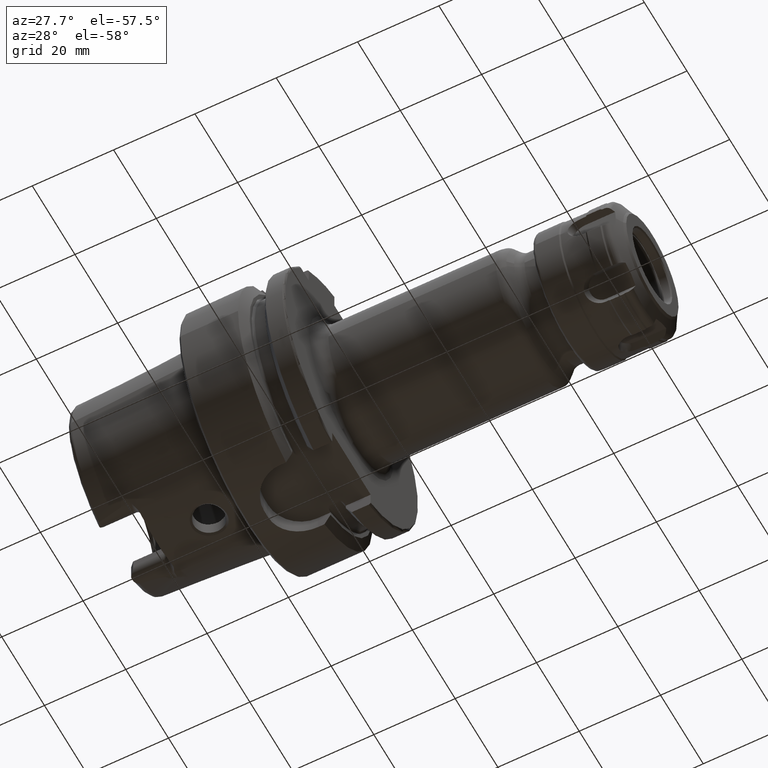
[diagram: clean part render]
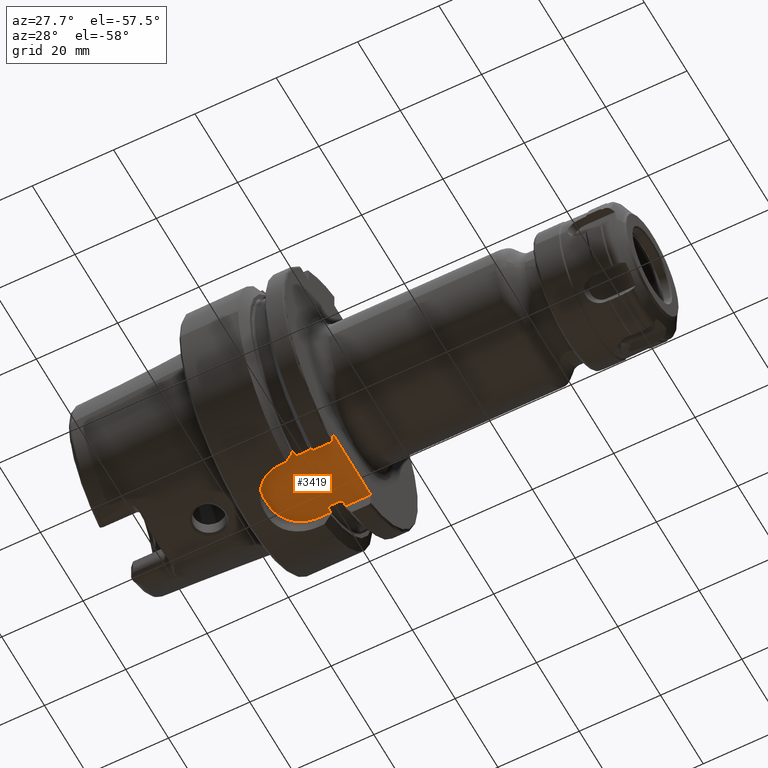
[diagram: same view with one face highlighted and labeled with its STEP entity id]
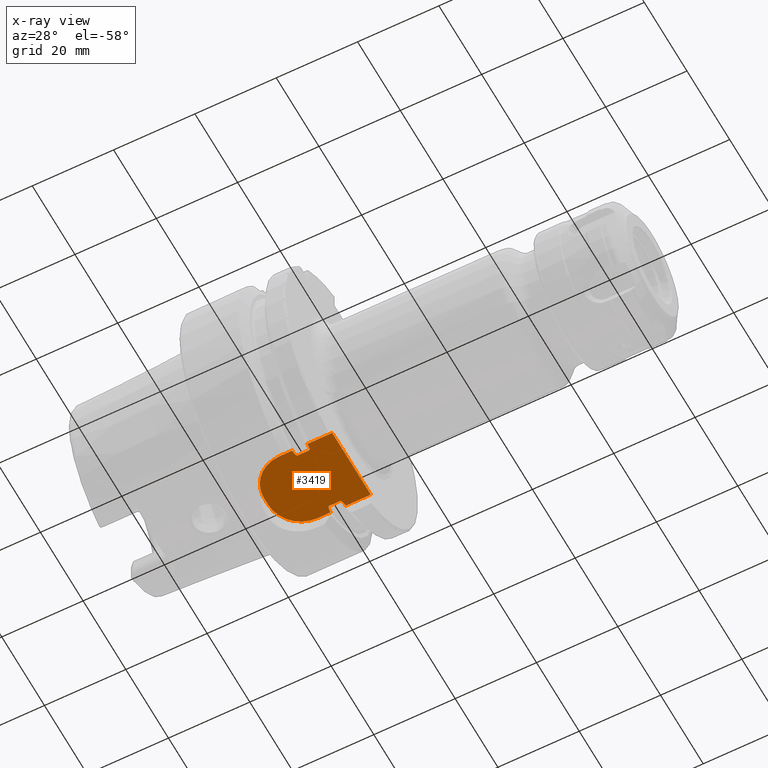
[diagram: x-ray of the same camera — body ghosted, the highlighted face saturated]
A machine part, auxiliary view. The second image highlights one B-rep face of the part: STEP entity #3419.
The next image is the same camera in x-ray: the body ghosted, the highlighted face saturated — about 0% of this face is hidden behind the body in this view.
In plain terms, the highlighted planar face has unit normal (0, 0, 1).
Its self-contained STEP definition (entity closure, byte-faithful):
#122=B_SPLINE_CURVE_WITH_KNOTS('',3,(#6136,#6137,#6138,#6139,#6140,#6141,
#6142,#6143,#6144,#6145),.UNSPECIFIED.,.F.,.F.,(4,2,2,2,4),(0.15835931245442,
0.289228035148658,0.316691561230897,0.323545183976989,0.328785692776271),
 .UNSPECIFIED.);
#123=B_SPLINE_CURVE_WITH_KNOTS('',3,(#6157,#6158,#6159,#6160,#6161,#6162,
#6163,#6164,#6165,#6166),.UNSPECIFIED.,.F.,.F.,(4,2,2,2,4),(0.328785692776271,
0.334026201575553,0.340879824321645,0.368343350403884,0.499212073098123),
 .UNSPECIFIED.);
#124=B_SPLINE_CURVE_WITH_KNOTS('',3,(#6169,#6170,#6171,#6172,#6173,#6174,
#6175,#6176,#6177,#6178),.UNSPECIFIED.,.F.,.F.,(4,2,2,2,4),(0.15835931245442,
0.289228035148658,0.316691561230897,0.323545183976988,0.32878569277627),
 .UNSPECIFIED.);
#125=B_SPLINE_CURVE_WITH_KNOTS('',3,(#6180,#6181,#6182,#6183,#6184,#6185,
#6186,#6187,#6188,#6189),.UNSPECIFIED.,.F.,.F.,(4,2,2,2,4),(0.32878569277627,
0.334026201575552,0.340879824321644,0.368343350403882,0.49921207309812),
 .UNSPECIFIED.);
#208=PLANE('',#3766);
#398=FACE_OUTER_BOUND('',#604,.T.);
#604=EDGE_LOOP('',(#2544,#2545,#2546,#2547,#2548,#2549,#2550,#2551,#2552,
#2553,#2554,#2555,#2556,#2557));
#773=LINE('',#5183,#957);
#827=LINE('',#6090,#1011);
#829=LINE('',#6120,#1013);
#832=LINE('',#6147,#1016);
#833=LINE('',#6151,#1017);
#834=LINE('',#6155,#1018);
#835=LINE('',#6168,#1019);
#836=LINE('',#6190,#1020);
#957=VECTOR('',#4163,10.);
#1011=VECTOR('',#4391,10.);
#1013=VECTOR('',#4395,10.);
#1016=VECTOR('',#4400,10.);
#1017=VECTOR('',#4403,10.);
#1018=VECTOR('',#4406,10.);
#1019=VECTOR('',#4407,10.);
#1020=VECTOR('',#4408,10.);
#1205=CIRCLE('',#3767,8.);
#1206=CIRCLE('',#3768,8.);
#1374=VERTEX_POINT('',#5180);
#1375=VERTEX_POINT('',#5182);
#1483=VERTEX_POINT('',#6085);
#1487=VERTEX_POINT('',#6119);
#1491=VERTEX_POINT('',#6134);
#1492=VERTEX_POINT('',#6135);
#1493=VERTEX_POINT('',#6146);
#1494=VERTEX_POINT('',#6148);
#1495=VERTEX_POINT('',#6150);
#1496=VERTEX_POINT('',#6152);
#1497=VERTEX_POINT('',#6154);
#1498=VERTEX_POINT('',#6156);
#1499=VERTEX_POINT('',#6167);
#1500=VERTEX_POINT('',#6179);
#1740=EDGE_CURVE('',#1374,#1375,#773,.T.);
#1886=EDGE_CURVE('',#1483,#1374,#827,.T.);
#1891=EDGE_CURVE('',#1375,#1487,#829,.T.);
#1896=EDGE_CURVE('',#1491,#1492,#122,.T.);
#1897=EDGE_CURVE('',#1493,#1491,#832,.T.);
#1898=EDGE_CURVE('',#1494,#1493,#1205,.T.);
#1899=EDGE_CURVE('',#1495,#1494,#833,.T.);
#1900=EDGE_CURVE('',#1496,#1495,#1206,.T.);
#1901=EDGE_CURVE('',#1497,#1496,#834,.T.);
#1902=EDGE_CURVE('',#1498,#1497,#123,.T.);
#1903=EDGE_CURVE('',#1499,#1498,#835,.T.);
#1904=EDGE_CURVE('',#1487,#1499,#124,.T.);
#1905=EDGE_CURVE('',#1500,#1483,#125,.T.);
#1906=EDGE_CURVE('',#1492,#1500,#836,.T.);
#2544=ORIENTED_EDGE('',*,*,#1896,.F.);
#2545=ORIENTED_EDGE('',*,*,#1897,.F.);
#2546=ORIENTED_EDGE('',*,*,#1898,.F.);
#2547=ORIENTED_EDGE('',*,*,#1899,.F.);
#2548=ORIENTED_EDGE('',*,*,#1900,.F.);
#2549=ORIENTED_EDGE('',*,*,#1901,.F.);
#2550=ORIENTED_EDGE('',*,*,#1902,.F.);
#2551=ORIENTED_EDGE('',*,*,#1903,.F.);
#2552=ORIENTED_EDGE('',*,*,#1904,.F.);
#2553=ORIENTED_EDGE('',*,*,#1891,.F.);
#2554=ORIENTED_EDGE('',*,*,#1740,.F.);
#2555=ORIENTED_EDGE('',*,*,#1886,.F.);
#2556=ORIENTED_EDGE('',*,*,#1905,.F.);
#2557=ORIENTED_EDGE('',*,*,#1906,.F.);
#3419=ADVANCED_FACE('',(#398),#208,.F.);
#3766=AXIS2_PLACEMENT_3D('',#6133,#4398,#4399);
#3767=AXIS2_PLACEMENT_3D('',#6149,#4401,#4402);
#3768=AXIS2_PLACEMENT_3D('',#6153,#4404,#4405);
#4163=DIRECTION('',(0.,1.,0.));
#4391=DIRECTION('',(1.,-2.56205313375036E-16,0.));
#4395=DIRECTION('',(-1.,2.56205313375036E-16,0.));
#4398=DIRECTION('center_axis',(0.,0.,1.));
#4399=DIRECTION('ref_axis',(1.,0.,0.));
#4400=DIRECTION('',(1.,-2.56205313375036E-16,0.));
#4401=DIRECTION('center_axis',(0.,0.,1.));
#4402=DIRECTION('ref_axis',(-1.,-2.42861286636753E-16,0.));
#4403=DIRECTION('',(0.,-1.,0.));
#4404=DIRECTION('center_axis',(0.,0.,1.));
#4405=DIRECTION('ref_axis',(0.,1.,0.));
#4406=DIRECTION('',(-1.,2.56205313375036E-16,0.));
#4407=DIRECTION('',(-1.,0.,0.));
#4408=DIRECTION('',(1.,0.,0.));
#5180=CARTESIAN_POINT('',(26.,-9.,-26.5));
#5182=CARTESIAN_POINT('',(26.,9.,-26.5));
#5183=CARTESIAN_POINT('',(26.,1.94289029309402E-15,-26.5));
#6085=CARTESIAN_POINT('',(19.8748205133158,-9.,-26.5));
#6090=CARTESIAN_POINT('',(13.,-9.,-26.5));
#6119=CARTESIAN_POINT('',(19.8748205133158,9.,-26.5));
#6120=CARTESIAN_POINT('',(26.,9.,-26.5));
#6133=CARTESIAN_POINT('Origin',(15.5,3.88578058618805E-15,-26.5));
#6134=CARTESIAN_POINT('',(16.1251794866842,-9.,-26.5));
#6135=CARTESIAN_POINT('',(16.625,-7.34846922834952,-26.5));
#6136=CARTESIAN_POINT('Ctrl Pts',(16.1251794866842,-9.,-26.5));
#6137=CARTESIAN_POINT('Ctrl Pts',(16.12898241235,-8.55877260788573,-26.5));
#6138=CARTESIAN_POINT('Ctrl Pts',(16.1819334034884,-8.04136347440828,-26.5));
#6139=CARTESIAN_POINT('Ctrl Pts',(16.3906456489289,-7.5566112023157,-26.5));
#6140=CARTESIAN_POINT('Ctrl Pts',(16.4411490019356,-7.4590543697872,-26.5));
#6141=CARTESIAN_POINT('Ctrl Pts',(16.5270295504762,-7.38349170057081,-26.5));
#6142=CARTESIAN_POINT('Ctrl Pts',(16.5496994821687,-7.36807649661538,-26.5));
#6143=CARTESIAN_POINT('Ctrl Pts',(16.587038394856,-7.35287762173868,-26.5));
#6144=CARTESIAN_POINT('Ctrl Pts',(16.6075316373357,-7.34846922834952,-26.5));
#6145=CARTESIAN_POINT('Ctrl Pts',(16.625,-7.34846922834952,-26.5));
#6146=CARTESIAN_POINT('',(13.,-9.,-26.5));
#6147=CARTESIAN_POINT('',(13.,-9.,-26.5));
#6148=CARTESIAN_POINT('',(5.,-0.999999999999999,-26.5));
#6149=CARTESIAN_POINT('Origin',(13.,-0.999999999999997,-26.5));
#6150=CARTESIAN_POINT('',(5.,1.,-26.5));
#6151=CARTESIAN_POINT('',(5.,1.,-26.5));
#6152=CARTESIAN_POINT('',(13.,9.00000000000001,-26.5));
#6153=CARTESIAN_POINT('Origin',(13.,1.,-26.5));
#6154=CARTESIAN_POINT('',(16.1251794866842,9.,-26.5));
#6155=CARTESIAN_POINT('',(26.,9.,-26.5));
#6156=CARTESIAN_POINT('',(16.625,7.34846922834952,-26.5));
#6157=CARTESIAN_POINT('Ctrl Pts',(16.625,7.34846922834952,-26.5));
#6158=CARTESIAN_POINT('Ctrl Pts',(16.6075316373357,7.34846922834952,-26.5));
#6159=CARTESIAN_POINT('Ctrl Pts',(16.587038394856,7.35287762173868,-26.5));
#6160=CARTESIAN_POINT('Ctrl Pts',(16.5496994821687,7.36807649661538,-26.5));
#6161=CARTESIAN_POINT('Ctrl Pts',(16.5270295504762,7.38349170057081,-26.5));
#6162=CARTESIAN_POINT('Ctrl Pts',(16.4411490019356,7.4590543697872,-26.5));
#6163=CARTESIAN_POINT('Ctrl Pts',(16.3906456489289,7.5566112023157,-26.5));
#6164=CARTESIAN_POINT('Ctrl Pts',(16.1819334034884,8.04136347440828,-26.5));
#6165=CARTESIAN_POINT('Ctrl Pts',(16.12898241235,8.55877260788573,-26.5));
#6166=CARTESIAN_POINT('Ctrl Pts',(16.1251794866842,9.,-26.5));
#6167=CARTESIAN_POINT('',(19.375,7.34846922834952,-26.5));
#6168=CARTESIAN_POINT('',(18.,7.34846922834952,-26.5));
#6169=CARTESIAN_POINT('Ctrl Pts',(19.8748205133158,9.,-26.5));
#6170=CARTESIAN_POINT('Ctrl Pts',(19.87101758765,8.55877260788573,-26.5));
#6171=CARTESIAN_POINT('Ctrl Pts',(19.8180665965116,8.04136347440828,-26.5));
#6172=CARTESIAN_POINT('Ctrl Pts',(19.6093543510711,7.5566112023157,-26.5));
#6173=CARTESIAN_POINT('Ctrl Pts',(19.5588509980644,7.45905436978719,-26.5));
#6174=CARTESIAN_POINT('Ctrl Pts',(19.4729704495238,7.38349170057082,-26.5));
#6175=CARTESIAN_POINT('Ctrl Pts',(19.4503005178313,7.3680764966154,-26.5));
#6176=CARTESIAN_POINT('Ctrl Pts',(19.412961605144,7.35287762173869,-26.5));
#6177=CARTESIAN_POINT('Ctrl Pts',(19.3924683626643,7.34846922834952,-26.5));
#6178=CARTESIAN_POINT('Ctrl Pts',(19.375,7.34846922834952,-26.5));
#6179=CARTESIAN_POINT('',(19.375,-7.34846922834952,-26.5));
#6180=CARTESIAN_POINT('Ctrl Pts',(19.375,-7.34846922834952,-26.5));
#6181=CARTESIAN_POINT('Ctrl Pts',(19.3924683626643,-7.34846922834952,-26.5));
#6182=CARTESIAN_POINT('Ctrl Pts',(19.412961605144,-7.35287762173869,-26.5));
#6183=CARTESIAN_POINT('Ctrl Pts',(19.4503005178313,-7.3680764966154,-26.5));
#6184=CARTESIAN_POINT('Ctrl Pts',(19.4729704495238,-7.38349170057082,-26.5));
#6185=CARTESIAN_POINT('Ctrl Pts',(19.5588509980644,-7.45905436978719,-26.5));
#6186=CARTESIAN_POINT('Ctrl Pts',(19.6093543510711,-7.5566112023157,-26.5));
#6187=CARTESIAN_POINT('Ctrl Pts',(19.8180665965116,-8.04136347440828,-26.5));
#6188=CARTESIAN_POINT('Ctrl Pts',(19.87101758765,-8.55877260788573,-26.5));
#6189=CARTESIAN_POINT('Ctrl Pts',(19.8748205133158,-9.,-26.5));
#6190=CARTESIAN_POINT('',(18.,-7.34846922834952,-26.5));